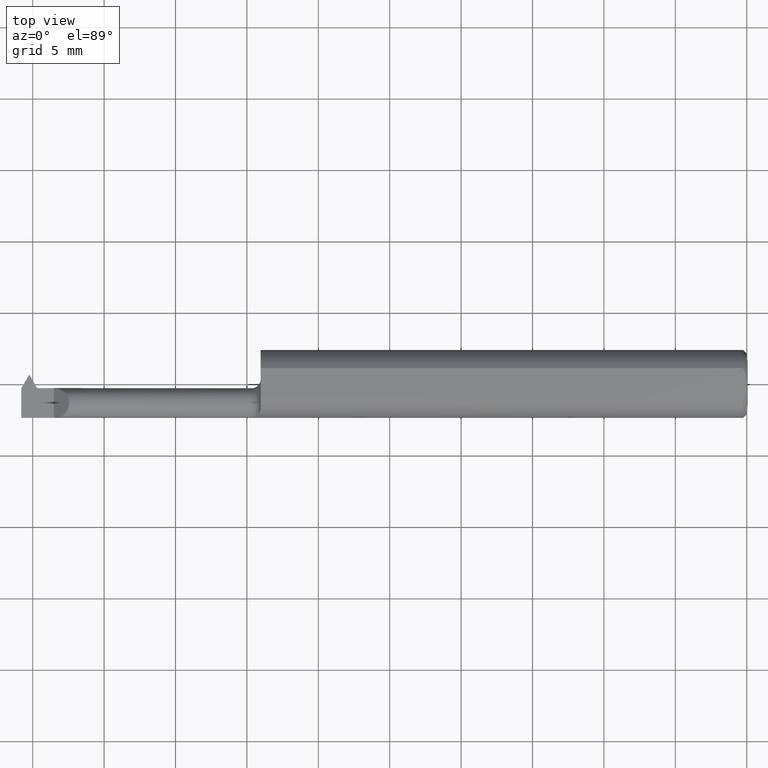
[diagram: clean part render]
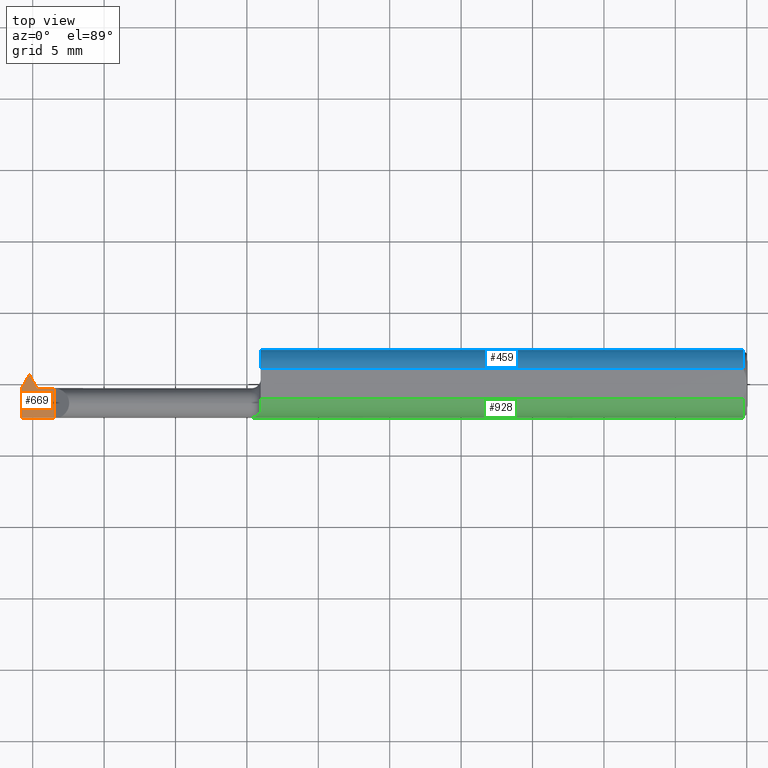
[diagram: same view with three faces highlighted in distinct colors, each labeled with its STEP entity id]
A machine part, top view with three faces highlighted in distinct colors.
Their STEP definitions:

[orange] entity #669 — the highlighted planar face has unit normal (-0, 0, -1).
#9 = VECTOR ( 'NONE', #759, 39.37007874015748143 ) ;
#60 = DIRECTION ( 'NONE',  ( -1.000000000000000000, 0.000000000000000000, 8.387933210295857967E-19 ) ) ;
#80 = CARTESIAN_POINT ( 'NONE',  ( -2.000000000000000000, -0.09360000000000014142, 7.549139889266259604E-20 ) ) ;
#83 = ORIENTED_EDGE ( 'NONE', *, *, #276, .F. ) ;
#96 = EDGE_CURVE ( 'NONE', #637, #274, #162, .T. ) ;
#101 = CARTESIAN_POINT ( 'NONE',  ( 1.435927601666783992E-16, -0.01159999999997600277, 0.000000000000000000 ) ) ;
#103 = LINE ( 'NONE', #727, #430 ) ;
#105 = EDGE_LOOP ( 'NONE', ( #1000, #151, #369, #180, #748, #83, #596, #964 ) ) ;
#109 = EDGE_CURVE ( 'NONE', #546, #327, #813, .T. ) ;
#122 = VECTOR ( 'NONE', #402, 39.37007874015748143 ) ;
#151 = ORIENTED_EDGE ( 'NONE', *, *, #888, .F. ) ;
#162 = LINE ( 'NONE', #175, #122 ) ;
#166 = EDGE_CURVE ( 'NONE', #944, #193, #911, .T. ) ;
#175 = CARTESIAN_POINT ( 'NONE',  ( -2.000000000000000000, -6.123233995736764803E-17, 7.549139889266262011E-20 ) ) ;
#180 = ORIENTED_EDGE ( 'NONE', *, *, #520, .T. ) ;
#193 = VERTEX_POINT ( 'NONE', #752 ) ;
#196 = EDGE_CURVE ( 'NONE', #359, #881, #340, .T. ) ;
#197 = LINE ( 'NONE', #432, #1008 ) ;
#222 = CARTESIAN_POINT ( 'NONE',  ( -1.978999999999999204, 0.02439999999999992522, 0.000000000000000000 ) ) ;
#247 = DIRECTION ( 'NONE',  ( 1.000000000000000000, 1.224646799147353700E-16, -0.000000000000000000 ) ) ;
#272 = PLANE ( 'NONE',  #652 ) ;
#274 = VERTEX_POINT ( 'NONE', #900 ) ;
#276 = EDGE_CURVE ( 'NONE', #327, #881, #197, .T. ) ;
#327 = VERTEX_POINT ( 'NONE', #602 ) ;
#340 = LINE ( 'NONE', #589, #682 ) ;
#351 = VECTOR ( 'NONE', #247, 39.37007874015748143 ) ;
#359 = VERTEX_POINT ( 'NONE', #540 ) ;
#369 = ORIENTED_EDGE ( 'NONE', *, *, #96, .T. ) ;
#387 = CARTESIAN_POINT ( 'NONE',  ( -1.956215390309173463, -0.01160000000000022645, 0.000000000000000000 ) ) ;
#402 = DIRECTION ( 'NONE',  ( 1.224646799147353700E-16, -1.000000000000000000, -1.027225555745061067E-34 ) ) ;
#407 = DIRECTION ( 'NONE',  ( 1.000000000000000000, 1.237868622129098811E-14, 0.000000000000000000 ) ) ;
#410 = VECTOR ( 'NONE', #407, 39.37007874015748143 ) ;
#430 = VECTOR ( 'NONE', #819, 39.37007874015748143 ) ;
#431 = LINE ( 'NONE', #762, #9 ) ;
#432 = CARTESIAN_POINT ( 'NONE',  ( -2.000000000000000000, -0.01160000000000012410, 7.549139889266262011E-20 ) ) ;
#438 = CARTESIAN_POINT ( 'NONE',  ( -2.000000000000000000, -0.1250000000000000000, 7.549139889266262011E-20 ) ) ;
#444 = FACE_OUTER_BOUND ( 'NONE', #105, .T. ) ;
#520 = EDGE_CURVE ( 'NONE', #274, #359, #728, .T. ) ;
#540 = CARTESIAN_POINT ( 'NONE',  ( -1.910000000000000142, -0.09360000000000014142, 0.000000000000000000 ) ) ;
#546 = VERTEX_POINT ( 'NONE', #387 ) ;
#589 = CARTESIAN_POINT ( 'NONE',  ( -1.910000000000000142, -0.1250000000000000000, 0.000000000000000000 ) ) ;
#596 = ORIENTED_EDGE ( 'NONE', *, *, #109, .F. ) ;
#602 = CARTESIAN_POINT ( 'NONE',  ( -1.951215390309173348, -0.01160000000000022645, 0.000000000000000000 ) ) ;
#604 = CARTESIAN_POINT ( 'NONE',  ( -2.000000000000000444, -0.01197306695894849449, 0.000000000000000000 ) ) ;
#612 = VECTOR ( 'NONE', #984, 39.37007874015748143 ) ;
#637 = VERTEX_POINT ( 'NONE', #604 ) ;
#652 = AXIS2_PLACEMENT_3D ( 'NONE', #438, #772, #60 ) ;
#669 = ADVANCED_FACE ( 'NONE', ( #444 ), #272, .F. ) ;
#679 = DIRECTION ( 'NONE',  ( 1.000000000000000000, 0.000000000000000000, 0.000000000000000000 ) ) ;
#682 = VECTOR ( 'NONE', #827, 39.37007874015748143 ) ;
#689 = EDGE_CURVE ( 'NONE', #193, #546, #431, .T. ) ;
#727 = CARTESIAN_POINT ( 'NONE',  ( -1.494815509926192387, 0.8630321370446887297, 0.000000000000000000 ) ) ;
#728 = LINE ( 'NONE', #80, #351 ) ;
#748 = ORIENTED_EDGE ( 'NONE', *, *, #196, .T. ) ;
#752 = CARTESIAN_POINT ( 'NONE',  ( -1.976999999999999647, 0.02439999999999985583, 0.000000000000000000 ) ) ;
#759 = DIRECTION ( 'NONE',  ( 0.5000000000000007772, -0.8660254037844380415, 0.000000000000000000 ) ) ;
#762 = CARTESIAN_POINT ( 'NONE',  ( -1.472184490073828567, -0.8499661116409185091, 0.000000000000000000 ) ) ;
#772 = DIRECTION ( 'NONE',  ( -8.387933210295857967E-19, 0.000000000000000000, -1.000000000000000000 ) ) ;
#813 = LINE ( 'NONE', #101, #410 ) ;
#816 = CARTESIAN_POINT ( 'NONE',  ( -1.910000000000000142, -0.01160000000000015706, 0.000000000000000000 ) ) ;
#819 = DIRECTION ( 'NONE',  ( 0.4999999999999887312, 0.8660254037844451469, 0.000000000000000000 ) ) ;
#827 = DIRECTION ( 'NONE',  ( -0.000000000000000000, 1.000000000000000000, -0.000000000000000000 ) ) ;
#881 = VERTEX_POINT ( 'NONE', #816 ) ;
#888 = EDGE_CURVE ( 'NONE', #637, #944, #103, .T. ) ;
#900 = CARTESIAN_POINT ( 'NONE',  ( -2.000000000000000000, -0.09360000000000014142, 7.549139889266262011E-20 ) ) ;
#911 = LINE ( 'NONE', #914, #612 ) ;
#914 = CARTESIAN_POINT ( 'NONE',  ( -2.000000000000000000, 0.02439999999999983155, 7.549139889266262011E-20 ) ) ;
#944 = VERTEX_POINT ( 'NONE', #222 ) ;
#964 = ORIENTED_EDGE ( 'NONE', *, *, #689, .F. ) ;
#984 = DIRECTION ( 'NONE',  ( 1.000000000000000000, 0.000000000000000000, 0.000000000000000000 ) ) ;
#1000 = ORIENTED_EDGE ( 'NONE', *, *, #166, .F. ) ;
#1008 = VECTOR ( 'NONE', #679, 39.37007874015748143 ) ;

[blue] entity #459 — the highlighted cylindrical surface (edge-blend (fillet) strip) has radius 2.3774 mm, axis along (1, 0, -0).
#41 = AXIS2_PLACEMENT_3D ( 'NONE', #572, #476, #186 ) ;
#71 = LINE ( 'NONE', #942, #698 ) ;
#91 = VECTOR ( 'NONE', #297, 39.37007874015748143 ) ;
#98 = ORIENTED_EDGE ( 'NONE', *, *, #757, .F. ) ;
#120 = CARTESIAN_POINT ( 'NONE',  ( -0.009999999999999630712, 0.09360000000000028020, 0.000000000000000000 ) ) ;
#136 = VERTEX_POINT ( 'NONE', #869 ) ;
#163 = VERTEX_POINT ( 'NONE', #120 ) ;
#185 = VERTEX_POINT ( 'NONE', #743 ) ;
#186 = DIRECTION ( 'NONE',  ( -1.140094147996903776E-16, 1.000000000000000000, 8.881784197001252323E-16 ) ) ;
#206 = DIRECTION ( 'NONE',  ( 0.000000000000000000, 1.776356839400250267E-15, 1.000000000000000000 ) ) ;
#215 = AXIS2_PLACEMENT_3D ( 'NONE', #324, #709, #309 ) ;
#260 = EDGE_LOOP ( 'NONE', ( #798, #705, #98, #726 ) ) ;
#297 = DIRECTION ( 'NONE',  ( -1.000000000000000000, -1.224646799147353700E-16, 0.000000000000000000 ) ) ;
#300 = DIRECTION ( 'NONE',  ( 1.000000000000000000, 1.224646799147353700E-16, -0.000000000000000000 ) ) ;
#304 = CARTESIAN_POINT ( 'NONE',  ( -2.000000000000000000, 0.04209513035969831424, 0.08360000000000007703 ) ) ;
#309 = DIRECTION ( 'NONE',  ( 0.000000000000000000, 1.000000000000000000, 0.000000000000000000 ) ) ;
#318 = EDGE_CURVE ( 'NONE', #136, #163, #71, .T. ) ;
#324 = CARTESIAN_POINT ( 'NONE',  ( -2.000000000000000000, -6.123233995736764803E-17, 0.000000000000000000 ) ) ;
#330 = FACE_OUTER_BOUND ( 'NONE', #260, .T. ) ;
#334 = CIRCLE ( 'NONE', #41, 0.09360000000000007203 ) ;
#368 = DIRECTION ( 'NONE',  ( 1.000000000000000000, 0.000000000000000000, 0.000000000000000000 ) ) ;
#388 = EDGE_CURVE ( 'NONE', #136, #185, #965, .T. ) ;
#459 = ADVANCED_FACE ( 'NONE', ( #330 ), #720, .T. ) ;
#476 = DIRECTION ( 'NONE',  ( -1.000000000000000000, -1.224646799147374408E-16, 0.000000000000000000 ) ) ;
#512 = AXIS2_PLACEMENT_3D ( 'NONE', #843, #368, #206 ) ;
#548 = VERTEX_POINT ( 'NONE', #789 ) ;
#572 = CARTESIAN_POINT ( 'NONE',  ( -0.009999999999999620304, 1.824723730729557662E-16, 0.000000000000000000 ) ) ;
#575 = EDGE_CURVE ( 'NONE', #548, #163, #334, .T. ) ;
#698 = VECTOR ( 'NONE', #300, 39.37007874015748143 ) ;
#705 = ORIENTED_EDGE ( 'NONE', *, *, #388, .T. ) ;
#709 = DIRECTION ( 'NONE',  ( 1.000000000000000000, 1.224646799147353700E-16, -0.000000000000000000 ) ) ;
#720 = CYLINDRICAL_SURFACE ( 'NONE', #215, 0.09360000000000007203 ) ;
#726 = ORIENTED_EDGE ( 'NONE', *, *, #575, .T. ) ;
#743 = CARTESIAN_POINT ( 'NONE',  ( -1.339999999999999858, 0.04209513035969856404, 0.08360000000000007703 ) ) ;
#757 = EDGE_CURVE ( 'NONE', #548, #185, #945, .T. ) ;
#789 = CARTESIAN_POINT ( 'NONE',  ( -0.009999999999999620304, 0.04209513035969856404, 0.08360000000000007703 ) ) ;
#798 = ORIENTED_EDGE ( 'NONE', *, *, #318, .F. ) ;
#843 = CARTESIAN_POINT ( 'NONE',  ( -1.339999999999999858, 1.959434878635771270E-17, 0.000000000000000000 ) ) ;
#869 = CARTESIAN_POINT ( 'NONE',  ( -1.339999999999999858, 0.09360000000000009979, 0.000000000000000000 ) ) ;
#942 = CARTESIAN_POINT ( 'NONE',  ( -2.000000000000000000, 0.09360000000000001652, 0.000000000000000000 ) ) ;
#945 = LINE ( 'NONE', #304, #91 ) ;
#965 = CIRCLE ( 'NONE', #512, 0.09360000000000007203 ) ;

[green] entity #928 — the highlighted cylindrical surface (edge-blend (fillet) strip) has radius 2.3774 mm, axis along (1, 0, -0).
#5 = CARTESIAN_POINT ( 'NONE',  ( -1.356246254951165797, -0.09087486346019997552, 0.02250610835622541411 ) ) ;
#17 = LINE ( 'NONE', #328, #447 ) ;
#32 = VERTEX_POINT ( 'NONE', #82 ) ;
#36 = EDGE_LOOP ( 'NONE', ( #734, #289, #171, #189, #927, #824, #147 ) ) ;
#37 = CARTESIAN_POINT ( 'NONE',  ( -1.364999999999999769, -0.09207014925373141478, 0.01685371224376549376 ) ) ;
#66 = CARTESIAN_POINT ( 'NONE',  ( -1.904343558428414518, -0.09360000000000014142, 0.005656441571585578247 ) ) ;
#70 = AXIS2_PLACEMENT_3D ( 'NONE', #211, #165, #564 ) ;
#79 = CARTESIAN_POINT ( 'NONE',  ( -1.340533642810060488, -0.07379783313304059955, 0.05781434694824254955 ) ) ;
#82 = CARTESIAN_POINT ( 'NONE',  ( -0.009999999999999620304, -0.04209513035969822403, 0.08360000000000007703 ) ) ;
#88 = DIRECTION ( 'NONE',  ( 1.000000000000000000, 1.224646799147353700E-16, -0.000000000000000000 ) ) ;
#93 = DIRECTION ( 'NONE',  ( 1.000000000000000000, 1.224646799147353700E-16, -0.000000000000000000 ) ) ;
#94 = CIRCLE ( 'NONE', #934, 0.09360000000000007203 ) ;
#129 = VERTEX_POINT ( 'NONE', #875 ) ;
#133 = CARTESIAN_POINT ( 'NONE',  ( -0.009999999999999609895, -0.09359999999999989162, 1.146269404001923546E-17 ) ) ;
#142 = CARTESIAN_POINT ( 'NONE',  ( -1.910000000000000142, -0.09360000000000014142, 0.000000000000000000 ) ) ;
#147 = ORIENTED_EDGE ( 'NONE', *, *, #941, .T. ) ;
#164 = CARTESIAN_POINT ( 'NONE',  ( -2.000000000000000000, -6.123233995736764803E-17, 0.000000000000000000 ) ) ;
#165 = DIRECTION ( 'NONE',  ( -1.000000000000000000, -1.224646799147374408E-16, 0.000000000000000000 ) ) ;
#171 = ORIENTED_EDGE ( 'NONE', *, *, #455, .T. ) ;
#172 = FACE_OUTER_BOUND ( 'NONE', #36, .T. ) ;
#189 = ORIENTED_EDGE ( 'NONE', *, *, #937, .F. ) ;
#207 = B_SPLINE_CURVE_WITH_KNOTS ( 'NONE', 3,
 ( #794, #615, #79, #856, #936, #219, #940, #384, #5, #539, #313, #457, #783, #375 ),
 .UNSPECIFIED., .F., .F.,
 ( 4, 2, 2, 2, 2, 2, 4 ),
 ( 4.596658917165095357E-05, 0.0004513928604864246856, 0.0008568191318011987362, 0.001262245403115972624, 0.001464958538773365477, 0.001566315106602061795, 0.001667671674430757896 ),
 .UNSPECIFIED. ) ;
#211 = CARTESIAN_POINT ( 'NONE',  ( -0.009999999999999620304, 1.824723730729557662E-16, 0.000000000000000000 ) ) ;
#213 = CARTESIAN_POINT ( 'NONE',  ( -2.000000000000000000, -0.09360000000000014142, 1.146269404001923546E-17 ) ) ;
#219 = CARTESIAN_POINT ( 'NONE',  ( -1.347959848387990212, -0.08665969772250080305, 0.03571742193949809657 ) ) ;
#258 = CARTESIAN_POINT ( 'NONE',  ( -1.339999999999999858, 1.959434878635771270E-17, 0.000000000000000000 ) ) ;
#289 = ORIENTED_EDGE ( 'NONE', *, *, #737, .T. ) ;
#313 = CARTESIAN_POINT ( 'NONE',  ( -1.360061339936134317, -0.09170362580914927231, 0.01875949767695260506 ) ) ;
#325 = LINE ( 'NONE', #790, #653 ) ;
#328 = CARTESIAN_POINT ( 'NONE',  ( -2.000000000000000000, -0.04209513035969846689, 0.08360000000000007703 ) ) ;
#348 = EDGE_CURVE ( 'NONE', #359, #628, #492, .T. ) ;
#359 = VERTEX_POINT ( 'NONE', #540 ) ;
#375 = CARTESIAN_POINT ( 'NONE',  ( -1.364999999999999769, -0.09207014925373141478, 0.01685371224376549376 ) ) ;
#380 = DIRECTION ( 'NONE',  ( 1.000000000000000000, 1.224646799147353700E-16, -0.000000000000000000 ) ) ;
#384 = CARTESIAN_POINT ( 'NONE',  ( -1.354680805881109285, -0.09033173497864138701, 0.02462299273448365772 ) ) ;
#394 = VECTOR ( 'NONE', #380, 39.37007874015748143 ) ;
#399 = DIRECTION ( 'NONE',  ( 0.000000000000000000, 1.000000000000000000, 0.000000000000000000 ) ) ;
#409 = DIRECTION ( 'NONE',  ( 0.000000000000000000, 0.000000000000000000, 1.000000000000000000 ) ) ;
#447 = VECTOR ( 'NONE', #88, 39.37007874015748143 ) ;
#455 = EDGE_CURVE ( 'NONE', #664, #32, #667, .T. ) ;
#457 = CARTESIAN_POINT ( 'NONE',  ( -1.362341178892572557, -0.09198016210675286075, 0.01735291095037161044 ) ) ;
#480 = VERTEX_POINT ( 'NONE', #946 ) ;
#489 = CYLINDRICAL_SURFACE ( 'NONE', #999, 0.09360000000000007203 ) ;
#492 =( BOUNDED_CURVE ( )  B_SPLINE_CURVE ( 3, ( #142, #66, #623, #1005 ),
 .UNSPECIFIED., .F., .F. ) 
 B_SPLINE_CURVE_WITH_KNOTS ( ( 4, 4 ),
 ( 4.712388980384689674, 4.893437473578368113 ),
 .UNSPECIFIED. ) 
 CURVE ( )  GEOMETRIC_REPRESENTATION_ITEM ( )  RATIONAL_B_SPLINE_CURVE ( ( 1.000000000000000000, 0.9972703184196847204, 0.9972703184196847204, 1.000000000000000000 ) ) 
 REPRESENTATION_ITEM ( '' )  );
#536 = DIRECTION ( 'NONE',  ( -1.000000000000000000, -0.000000000000000000, -0.000000000000000000 ) ) ;
#539 = CARTESIAN_POINT ( 'NONE',  ( -1.359051853270248689, -0.09151898401755217960, 0.01965164102480112390 ) ) ;
#540 = CARTESIAN_POINT ( 'NONE',  ( -1.910000000000000142, -0.09360000000000014142, 0.000000000000000000 ) ) ;
#561 = VERTEX_POINT ( 'NONE', #37 ) ;
#564 = DIRECTION ( 'NONE',  ( -1.140094147996903776E-16, 1.000000000000000000, 0.000000000000000000 ) ) ;
#615 = CARTESIAN_POINT ( 'NONE',  ( -1.339999999999967217, -0.07042168361180435598, 0.06189183342624785672 ) ) ;
#623 = CARTESIAN_POINT ( 'NONE',  ( -1.898710277283381487, -0.09308865393932090615, 0.01128972271661903178 ) ) ;
#628 = VERTEX_POINT ( 'NONE', #916 ) ;
#653 = VECTOR ( 'NONE', #536, 39.37007874015748143 ) ;
#664 = VERTEX_POINT ( 'NONE', #133 ) ;
#667 = CIRCLE ( 'NONE', #70, 0.09360000000000007203 ) ;
#734 = ORIENTED_EDGE ( 'NONE', *, *, #348, .F. ) ;
#735 = DIRECTION ( 'NONE',  ( 1.000000000000000000, 0.000000000000000000, 0.000000000000000000 ) ) ;
#737 = EDGE_CURVE ( 'NONE', #359, #664, #1014, .T. ) ;
#783 = CARTESIAN_POINT ( 'NONE',  ( -1.363637246768929057, -0.09207014925426146301, 0.01685371224087018477 ) ) ;
#790 = CARTESIAN_POINT ( 'NONE',  ( -1.658107695154586558, -0.09207014925373133152, 0.01685371224376547294 ) ) ;
#794 = CARTESIAN_POINT ( 'NONE',  ( -1.339999999999999858, -0.06665037313372720873, 0.06571672360267592772 ) ) ;
#814 = EDGE_CURVE ( 'NONE', #480, #561, #207, .T. ) ;
#824 = ORIENTED_EDGE ( 'NONE', *, *, #814, .T. ) ;
#856 = CARTESIAN_POINT ( 'NONE',  ( -1.342581066291030689, -0.07980979860412792948, 0.04918348233861045277 ) ) ;
#875 = CARTESIAN_POINT ( 'NONE',  ( -1.339999999999999858, -0.04209513035969839057, 0.08360000000000007703 ) ) ;
#894 = EDGE_CURVE ( 'NONE', #129, #480, #94, .T. ) ;
#916 = CARTESIAN_POINT ( 'NONE',  ( -1.893146287756234614, -0.09207014925373138703, 0.01685371224376541049 ) ) ;
#927 = ORIENTED_EDGE ( 'NONE', *, *, #894, .T. ) ;
#928 = ADVANCED_FACE ( 'NONE', ( #172 ), #489, .T. ) ;
#934 = AXIS2_PLACEMENT_3D ( 'NONE', #258, #735, #409 ) ;
#936 = CARTESIAN_POINT ( 'NONE',  ( -1.344091173271727779, -0.08239225417091353143, 0.04468952776652409392 ) ) ;
#937 = EDGE_CURVE ( 'NONE', #129, #32, #17, .T. ) ;
#940 = CARTESIAN_POINT ( 'NONE',  ( -1.350323772047324455, -0.08838176252372469122, 0.03114868400134495133 ) ) ;
#941 = EDGE_CURVE ( 'NONE', #561, #628, #325, .T. ) ;
#946 = CARTESIAN_POINT ( 'NONE',  ( -1.339999999999999858, -0.06665037313372720873, 0.06571672360267592772 ) ) ;
#999 = AXIS2_PLACEMENT_3D ( 'NONE', #164, #93, #399 ) ;
#1005 = CARTESIAN_POINT ( 'NONE',  ( -1.893146287756234614, -0.09207014925373138703, 0.01685371224376541049 ) ) ;
#1014 = LINE ( 'NONE', #213, #394 ) ;